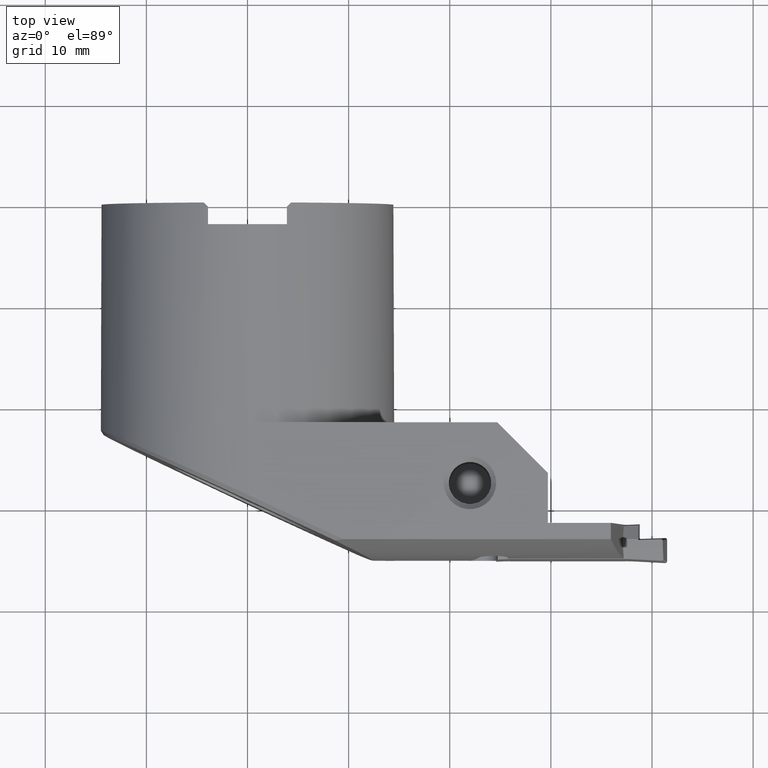
[diagram: clean part render]
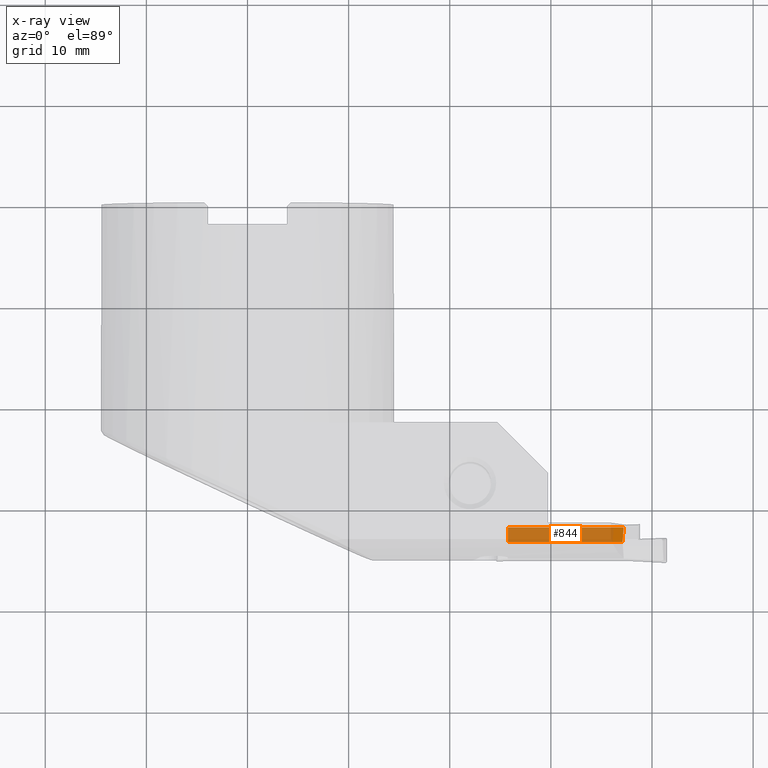
[diagram: x-ray — body ghosted, one internal face saturated and labeled with its STEP entity id]
A machine part, top view, then the same camera in x-ray: the body is ghosted and one INTERNAL B-rep face — a face not visible from any outside direction — is saturated and labeled: STEP entity #844.
In plain terms, the highlighted planar face has unit normal (0, 0.5, 0.866).
Its self-contained STEP definition (entity closure, byte-faithful):
#840=EDGE_CURVE('NONE',#1298,#890,#2314,.F.);
#844=ADVANCED_FACE('NONE',(#2318),#2319,.F.);
#890=VERTEX_POINT('NONE',#2371);
#1098=EDGE_CURVE('NONE',#2124,#2098,#2597,.T.);
#1298=VERTEX_POINT('NONE',#2816);
#1726=EDGE_CURVE('NONE',#2098,#890,#3286,.T.);
#1998=EDGE_CURVE('NONE',#2124,#1298,#3592,.F.);
#2098=VERTEX_POINT('NONE',#3699);
#2124=VERTEX_POINT('NONE',#3729);
#2314=LINE('',#4069,#4070);
#2318=FACE_OUTER_BOUND('',#4076,.T.);
#2319=PLANE('',#4077);
#2371=CARTESIAN_POINT('',(37.2,-31.9755136271329,4.20000000000001));
#2597=LINE('',#4590,#4591);
#2816=CARTESIAN_POINT('',(25.7393,-31.9755136271329,4.20000000000001));
#3286=LINE('',#5806,#5807);
#3592=LINE('',#6395,#6396);
#3699=CARTESIAN_POINT('',(37.0956331232325,-33.4477568135664,5.05000000000001));
#3729=CARTESIAN_POINT('',(25.7393,-33.4477568135664,5.05000000000001));
#4069=CARTESIAN_POINT('',(30.3372907079278,-31.9755136271329,4.2));
#4070=VECTOR('',#7015,1.0);
#4076=EDGE_LOOP('',(#7018,#7019,#7020,#7021));
#4077=AXIS2_PLACEMENT_3D('',#7022,#7023,#7024);
#4590=CARTESIAN_POINT('',(22.6745814158556,-33.4477568135664,5.05000000000001));
#4591=VECTOR('',#7309,1.0);
#5806=CARTESIAN_POINT('',(36.8728045814375,-36.5910702149206,6.86479283841916));
#5807=VECTOR('',#8021,1.0);
#6395=CARTESIAN_POINT('',(25.7393,-32.2333176101748,4.34884319900743));
#6396=VECTOR('',#8412,1.0);
#7015=DIRECTION('',(-1.0,0.0,-0.0));
#7018=ORIENTED_EDGE('',*,*,#840,.T.);
#7019=ORIENTED_EDGE('',*,*,#1726,.F.);
#7020=ORIENTED_EDGE('',*,*,#1098,.F.);
#7021=ORIENTED_EDGE('',*,*,#1998,.T.);
#7022=CARTESIAN_POINT('',(22.6745814158556,-33.4477568135664,5.05000000000001));
#7023=DIRECTION('',(0.0,0.499999999999996,0.866025403784441));
#7024=DIRECTION('',(0.0,0.866025403784441,-0.499999999999996));
#7309=DIRECTION('',(1.0,0.0,0.0));
#8021=DIRECTION('',(0.061276912343155,0.864397972585701,-0.499060402159316));
#8412=DIRECTION('',(4.47274901620843E-032,-0.866025403784441,0.499999999999996));